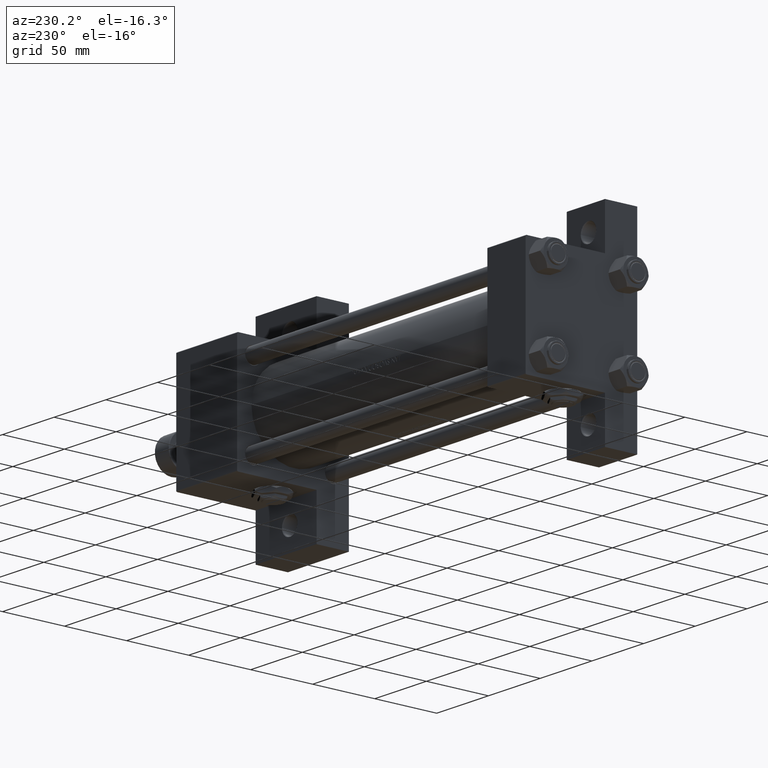
[diagram: clean part render]
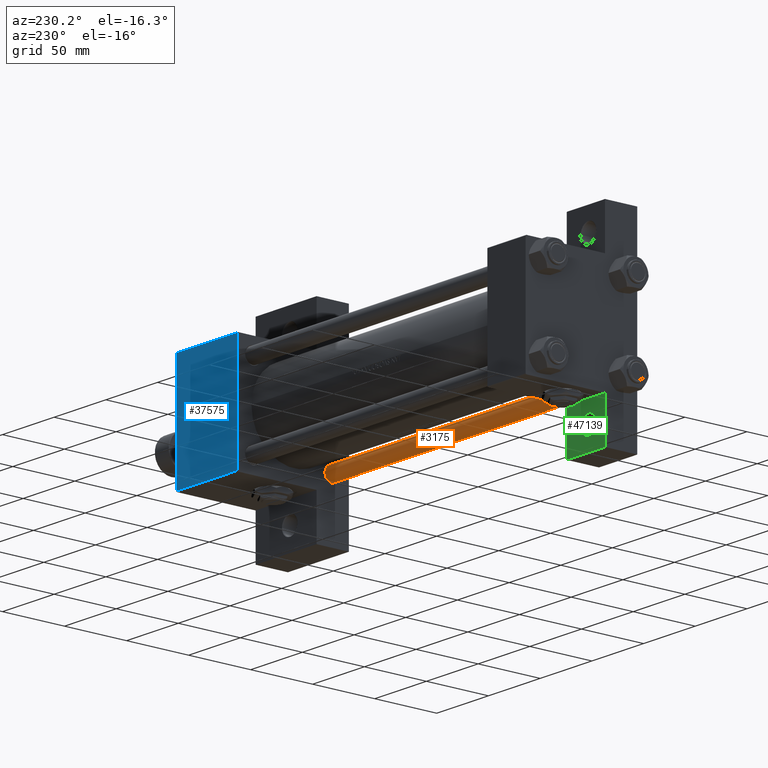
[diagram: same view with three faces highlighted in distinct colors, each labeled with its STEP entity id]
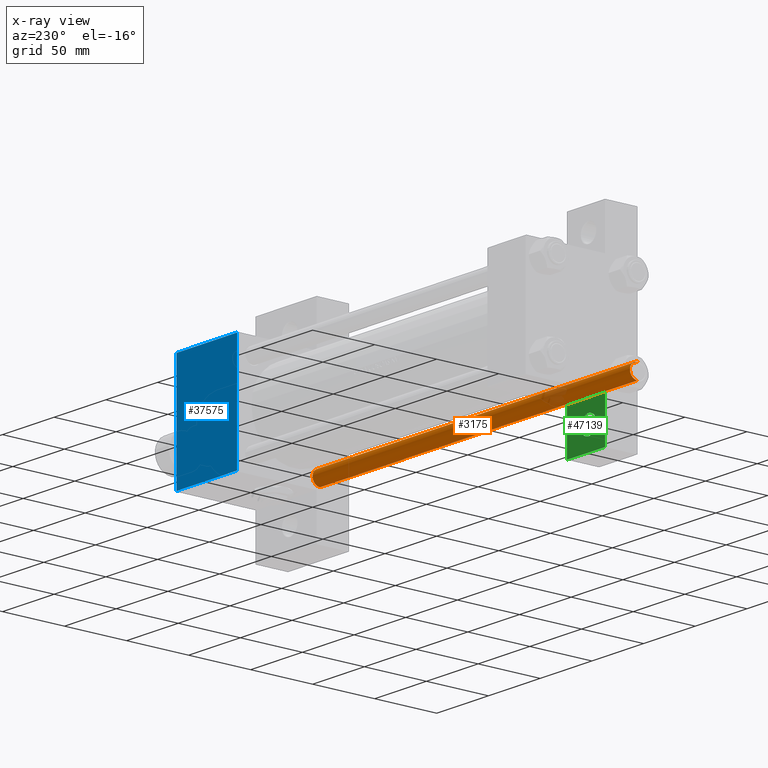
[diagram: x-ray of the same camera — body ghosted, the three highlighted faces saturated]
A machine part, auxiliary view with three faces highlighted in distinct colors.
The next image is the same camera in x-ray (body ghosted, the three faces saturated) — at least one of them is partly hidden behind the body in this view.
Their STEP definitions:

[orange] entity #3175 — the highlighted cylindrical surface (edge-blend (fillet) strip) has radius 6 mm, axis along (-1, 0, 0).
#1363 = DIRECTION ( 'NONE',  ( -0.000000000000000000, -0.000000000000000000, -1.000000000000000000 ) ) ;
#1617 = CARTESIAN_POINT ( 'NONE',  ( 0.000000000000000000, 0.000000000000000000, 308.0000000000000000 ) ) ;
#3175 = ADVANCED_FACE ( 'NONE', ( #43693 ), #44183, .T. ) ;
#3532 = CIRCLE ( 'NONE', #33472, 6.000000000000000888 ) ;
#5179 = LINE ( 'NONE', #36850, #29706 ) ;
#6274 = LINE ( 'NONE', #49327, #12818 ) ;
#6521 = DIRECTION ( 'NONE',  ( -0.000000000000000000, -0.000000000000000000, -1.000000000000000000 ) ) ;
#6607 = EDGE_CURVE ( 'NONE', #28093, #49217, #5179, .T. ) ;
#7252 = DIRECTION ( 'NONE',  ( 1.000000000000000000, 0.000000000000000000, 0.000000000000000000 ) ) ;
#7598 = CARTESIAN_POINT ( 'NONE',  ( -6.000000000000000888, 0.000000000000000000, 307.4999999999999432 ) ) ;
#10227 = EDGE_CURVE ( 'NONE', #36142, #18919, #6274, .T. ) ;
#12818 = VECTOR ( 'NONE', #6521, 1000.000000000000000 ) ;
#14029 = DIRECTION ( 'NONE',  ( 1.000000000000000000, 0.000000000000000000, 0.000000000000000000 ) ) ;
#14522 = DIRECTION ( 'NONE',  ( -0.000000000000000000, -0.000000000000000000, 1.000000000000000000 ) ) ;
#17085 = DIRECTION ( 'NONE',  ( -1.000000000000000000, 0.000000000000000000, 0.000000000000000000 ) ) ;
#17115 = CARTESIAN_POINT ( 'NONE',  ( 6.000000000000000888, 7.347880794884120722E-16, 307.4999999999999432 ) ) ;
#18212 = ORIENTED_EDGE ( 'NONE', *, *, #22272, .T. ) ;
#18919 = VERTEX_POINT ( 'NONE', #20629 ) ;
#19396 = DIRECTION ( 'NONE',  ( 0.000000000000000000, 0.000000000000000000, -1.000000000000000000 ) ) ;
#20629 = CARTESIAN_POINT ( 'NONE',  ( -6.000000000000000888, 0.000000000000000000, 0.5000000000000559552 ) ) ;
#22272 = EDGE_CURVE ( 'NONE', #18919, #49217, #42305, .T. ) ;
#24346 = EDGE_CURVE ( 'NONE', #28093, #36142, #3532, .T. ) ;
#27585 = EDGE_LOOP ( 'NONE', ( #37891, #40236, #30733, #18212 ) ) ;
#28093 = VERTEX_POINT ( 'NONE', #17115 ) ;
#29706 = VECTOR ( 'NONE', #1363, 1000.000000000000000 ) ;
#30733 = ORIENTED_EDGE ( 'NONE', *, *, #10227, .T. ) ;
#33472 = AXIS2_PLACEMENT_3D ( 'NONE', #33868, #19396, #7252 ) ;
#33868 = CARTESIAN_POINT ( 'NONE',  ( 0.000000000000000000, 0.000000000000000000, 307.4999999999999432 ) ) ;
#34036 = CARTESIAN_POINT ( 'NONE',  ( 0.000000000000000000, 0.000000000000000000, 0.5000000000000559552 ) ) ;
#35875 = AXIS2_PLACEMENT_3D ( 'NONE', #34036, #14522, #14029 ) ;
#36142 = VERTEX_POINT ( 'NONE', #7598 ) ;
#36850 = CARTESIAN_POINT ( 'NONE',  ( 6.000000000000000888, 7.347880794884120722E-16, 308.0000000000000000 ) ) ;
#37891 = ORIENTED_EDGE ( 'NONE', *, *, #6607, .F. ) ;
#40236 = ORIENTED_EDGE ( 'NONE', *, *, #24346, .T. ) ;
#41698 = AXIS2_PLACEMENT_3D ( 'NONE', #1617, #47505, #17085 ) ;
#42305 = CIRCLE ( 'NONE', #35875, 6.000000000000000888 ) ;
#43693 = FACE_OUTER_BOUND ( 'NONE', #27585, .T. ) ;
#44183 = CYLINDRICAL_SURFACE ( 'NONE', #41698, 6.000000000000000888 ) ;
#46002 = CARTESIAN_POINT ( 'NONE',  ( 6.000000000000000888, 7.347880794884120722E-16, 0.5000000000000559552 ) ) ;
#47505 = DIRECTION ( 'NONE',  ( -0.000000000000000000, -0.000000000000000000, -1.000000000000000000 ) ) ;
#49217 = VERTEX_POINT ( 'NONE', #46002 ) ;
#49327 = CARTESIAN_POINT ( 'NONE',  ( -6.000000000000000888, 0.000000000000000000, 308.0000000000000000 ) ) ;

[blue] entity #37575 — the highlighted planar face has unit normal (0, -1, -0).
#2227 = VECTOR ( 'NONE', #29492, 1000.000000000000000 ) ;
#2662 = VERTEX_POINT ( 'NONE', #35152 ) ;
#3147 = VERTEX_POINT ( 'NONE', #13275 ) ;
#5880 = DIRECTION ( 'NONE',  ( 0.000000000000000000, 1.541976423090495387E-16, -1.000000000000000000 ) ) ;
#8636 = VECTOR ( 'NONE', #36105, 1000.000000000000000 ) ;
#8681 = CARTESIAN_POINT ( 'NONE',  ( 337.9999999999999432, 45.00000000000001421, 45.00000000000000000 ) ) ;
#8686 = EDGE_CURVE ( 'NONE', #15625, #3147, #16665, .T. ) ;
#9728 = ORIENTED_EDGE ( 'NONE', *, *, #47354, .T. ) ;
#12243 = EDGE_LOOP ( 'NONE', ( #41525, #41621, #9728, #39439 ) ) ;
#13114 = CARTESIAN_POINT ( 'NONE',  ( 337.9999999999999432, 45.00000000000001421, 45.00000000000000000 ) ) ;
#13275 = CARTESIAN_POINT ( 'NONE',  ( 337.9999999999999432, -44.49999999999997158, 44.99999999999998579 ) ) ;
#14309 = CARTESIAN_POINT ( 'NONE',  ( 278.9999999999999432, 44.49999999999995737, 45.00000000000000000 ) ) ;
#15625 = VERTEX_POINT ( 'NONE', #21490 ) ;
#16665 = LINE ( 'NONE', #13114, #25726 ) ;
#20328 = FACE_OUTER_BOUND ( 'NONE', #12243, .T. ) ;
#20621 = LINE ( 'NONE', #36355, #8636 ) ;
#21490 = CARTESIAN_POINT ( 'NONE',  ( 337.9999999999999432, 44.49999999999995737, 45.00000000000000000 ) ) ;
#25663 = VERTEX_POINT ( 'NONE', #14309 ) ;
#25726 = VECTOR ( 'NONE', #35435, 1000.000000000000000 ) ;
#27674 = CARTESIAN_POINT ( 'NONE',  ( 278.9999999999999432, 45.00000000000001421, 45.00000000000000000 ) ) ;
#29492 = DIRECTION ( 'NONE',  ( 1.000000000000000000, 0.000000000000000000, 0.000000000000000000 ) ) ;
#35152 = CARTESIAN_POINT ( 'NONE',  ( 278.9999999999999432, -44.49999999999997158, 44.99999999999998579 ) ) ;
#35435 = DIRECTION ( 'NONE',  ( 0.000000000000000000, -1.000000000000000000, -1.541976423090495140E-16 ) ) ;
#35584 = VECTOR ( 'NONE', #46686, 1000.000000000000000 ) ;
#35632 = EDGE_CURVE ( 'NONE', #15625, #25663, #20621, .T. ) ;
#36105 = DIRECTION ( 'NONE',  ( -1.000000000000000000, 0.000000000000000000, 0.000000000000000000 ) ) ;
#36355 = CARTESIAN_POINT ( 'NONE',  ( 278.9999999999999432, 44.49999999999995737, 45.00000000000000000 ) ) ;
#37353 = LINE ( 'NONE', #40895, #2227 ) ;
#37575 = ADVANCED_FACE ( 'NONE', ( #20328 ), #40601, .F. ) ;
#38310 = EDGE_CURVE ( 'NONE', #2662, #3147, #37353, .T. ) ;
#39439 = ORIENTED_EDGE ( 'NONE', *, *, #38310, .T. ) ;
#40601 = PLANE ( 'NONE',  #49969 ) ;
#40895 = CARTESIAN_POINT ( 'NONE',  ( 337.9999999999999432, -44.50000000000000000, 44.99999999999998579 ) ) ;
#41525 = ORIENTED_EDGE ( 'NONE', *, *, #8686, .F. ) ;
#41621 = ORIENTED_EDGE ( 'NONE', *, *, #35632, .T. ) ;
#43899 = DIRECTION ( 'NONE',  ( 0.000000000000000000, 1.000000000000000000, 1.541976423090495387E-16 ) ) ;
#46686 = DIRECTION ( 'NONE',  ( 0.000000000000000000, -1.000000000000000000, -1.541976423090495140E-16 ) ) ;
#47354 = EDGE_CURVE ( 'NONE', #25663, #2662, #49728, .T. ) ;
#49728 = LINE ( 'NONE', #27674, #35584 ) ;
#49969 = AXIS2_PLACEMENT_3D ( 'NONE', #8681, #5880, #43899 ) ;

[green] entity #47139 — the highlighted planar face has unit normal (0, -1, 0).
#487 = CARTESIAN_POINT ( 'NONE',  ( 37.00000000000002132, 80.00000000000001421, -18.99999999999999645 ) ) ;
#523 = VERTEX_POINT ( 'NONE', #18253 ) ;
#801 = CARTESIAN_POINT ( 'NONE',  ( 16.00000000000000000, 61.99999999999997158, -19.00000000000000000 ) ) ;
#1282 = AXIS2_PLACEMENT_3D ( 'NONE', #801, #12202, #15501 ) ;
#1638 = EDGE_CURVE ( 'NONE', #39669, #523, #24064, .T. ) ;
#1762 = DIRECTION ( 'NONE',  ( -2.767091054814098392E-16, -1.000000000000000000, 0.000000000000000000 ) ) ;
#1914 = VERTEX_POINT ( 'NONE', #26808 ) ;
#2353 = AXIS2_PLACEMENT_3D ( 'NONE', #41378, #26414, #48754 ) ;
#3096 = EDGE_LOOP ( 'NONE', ( #46447, #19916 ) ) ;
#3162 = CARTESIAN_POINT ( 'NONE',  ( 16.00000000000000000, 61.99999999999997158, -19.00000000000000000 ) ) ;
#3528 = VECTOR ( 'NONE', #21533, 1000.000000000000000 ) ;
#5980 = DIRECTION ( 'NONE',  ( -1.000000000000000000, 0.000000000000000000, 0.000000000000000000 ) ) ;
#6082 = CARTESIAN_POINT ( 'NONE',  ( 1.030725107000828166E-14, 45.00000000000004263, -19.00000000000000355 ) ) ;
#8703 = VERTEX_POINT ( 'NONE', #12863 ) ;
#10487 = ORIENTED_EDGE ( 'NONE', *, *, #28714, .T. ) ;
#10957 = FACE_OUTER_BOUND ( 'NONE', #28153, .T. ) ;
#12033 = EDGE_CURVE ( 'NONE', #16322, #36951, #48966, .T. ) ;
#12202 = DIRECTION ( 'NONE',  ( 0.000000000000000000, 0.000000000000000000, -1.000000000000000000 ) ) ;
#12660 = CARTESIAN_POINT ( 'NONE',  ( 1.999206976185762377E-14, 80.00000000000001421, -18.99999999999999645 ) ) ;
#12863 = CARTESIAN_POINT ( 'NONE',  ( 23.49949999999999761, 61.99999999999997158, -19.00000000000000000 ) ) ;
#13024 = EDGE_CURVE ( 'NONE', #36951, #39669, #48309, .T. ) ;
#15501 = DIRECTION ( 'NONE',  ( -1.000000000000000000, 0.000000000000000000, 0.000000000000000000 ) ) ;
#15719 = CIRCLE ( 'NONE', #46463, 7.499499999999995836 ) ;
#16322 = VERTEX_POINT ( 'NONE', #47670 ) ;
#16635 = ORIENTED_EDGE ( 'NONE', *, *, #12033, .T. ) ;
#18253 = CARTESIAN_POINT ( 'NONE',  ( 0.000000000000000000, 44.99999999999998579, -18.99999999999997513 ) ) ;
#18611 = DIRECTION ( 'NONE',  ( -1.000000000000000000, 0.000000000000000000, 0.000000000000000000 ) ) ;
#19916 = ORIENTED_EDGE ( 'NONE', *, *, #30394, .T. ) ;
#21533 = DIRECTION ( 'NONE',  ( 1.000000000000000000, -3.750753461571474452E-16, 0.000000000000000000 ) ) ;
#22669 = DIRECTION ( 'NONE',  ( 0.000000000000000000, 0.000000000000000000, -1.000000000000000000 ) ) ;
#24064 = LINE ( 'NONE', #25075, #43262 ) ;
#25075 = CARTESIAN_POINT ( 'NONE',  ( 1.999206976185762692E-14, 80.00000000000002842, -18.99999999999999645 ) ) ;
#25830 = LINE ( 'NONE', #6082, #3528 ) ;
#26414 = DIRECTION ( 'NONE',  ( 0.000000000000000000, 0.000000000000000000, -1.000000000000000000 ) ) ;
#26808 = CARTESIAN_POINT ( 'NONE',  ( 8.500500000000004164, 61.99999999999997158, -19.00000000000000000 ) ) ;
#28153 = EDGE_LOOP ( 'NONE', ( #28774, #10487, #16635, #45954 ) ) ;
#28714 = EDGE_CURVE ( 'NONE', #523, #16322, #25830, .T. ) ;
#28774 = ORIENTED_EDGE ( 'NONE', *, *, #1638, .T. ) ;
#29956 = CARTESIAN_POINT ( 'NONE',  ( 37.00000000000002132, 80.00000000000002842, -18.99999999999999645 ) ) ;
#30394 = EDGE_CURVE ( 'NONE', #1914, #8703, #15719, .T. ) ;
#30642 = VECTOR ( 'NONE', #5980, 1000.000000000000000 ) ;
#32619 = CARTESIAN_POINT ( 'NONE',  ( 1.999206976185762377E-14, 80.00000000000001421, -18.99999999999999645 ) ) ;
#33737 = EDGE_CURVE ( 'NONE', #8703, #1914, #40935, .T. ) ;
#36951 = VERTEX_POINT ( 'NONE', #487 ) ;
#37350 = PLANE ( 'NONE',  #2353 ) ;
#37590 = FACE_BOUND ( 'NONE', #3096, .T. ) ;
#38802 = VECTOR ( 'NONE', #48726, 1000.000000000000000 ) ;
#39669 = VERTEX_POINT ( 'NONE', #12660 ) ;
#40935 = CIRCLE ( 'NONE', #1282, 7.499499999999995836 ) ;
#41378 = CARTESIAN_POINT ( 'NONE',  ( 0.000000000000000000, 0.000000000000000000, -19.00000000000000000 ) ) ;
#43262 = VECTOR ( 'NONE', #1762, 1000.000000000000000 ) ;
#45954 = ORIENTED_EDGE ( 'NONE', *, *, #13024, .T. ) ;
#46447 = ORIENTED_EDGE ( 'NONE', *, *, #33737, .T. ) ;
#46463 = AXIS2_PLACEMENT_3D ( 'NONE', #3162, #22669, #18611 ) ;
#47139 = ADVANCED_FACE ( 'NONE', ( #37590, #10957 ), #37350, .F. ) ;
#47670 = CARTESIAN_POINT ( 'NONE',  ( 37.00000000000001421, 45.00000000000002132, -18.99999999999999645 ) ) ;
#48309 = LINE ( 'NONE', #32619, #30642 ) ;
#48726 = DIRECTION ( 'NONE',  ( 1.982541115402065110E-16, 1.000000000000000000, 0.000000000000000000 ) ) ;
#48754 = DIRECTION ( 'NONE',  ( -1.000000000000000000, 0.000000000000000000, -0.000000000000000000 ) ) ;
#48966 = LINE ( 'NONE', #29956, #38802 ) ;